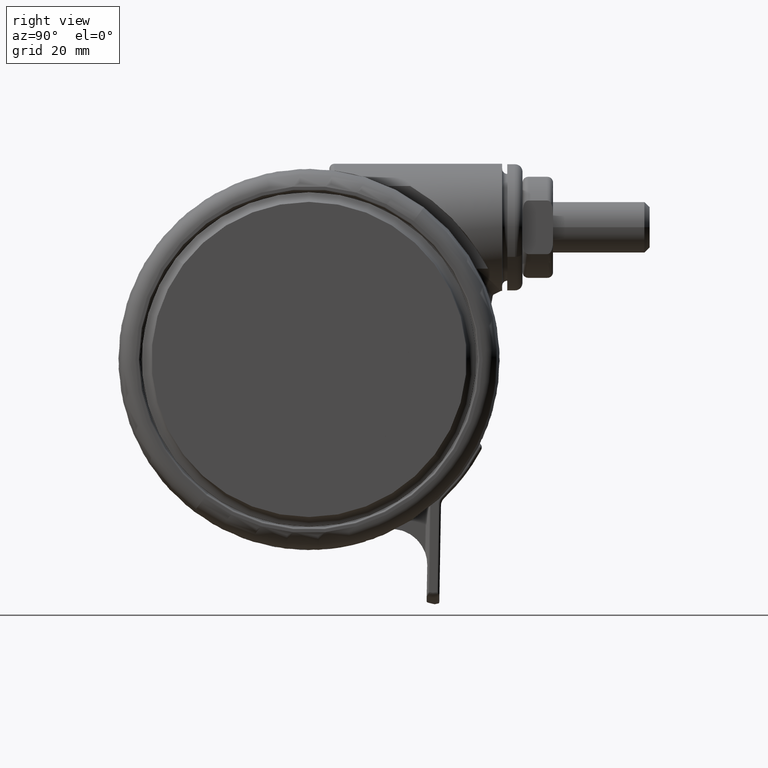
[diagram: clean part render]
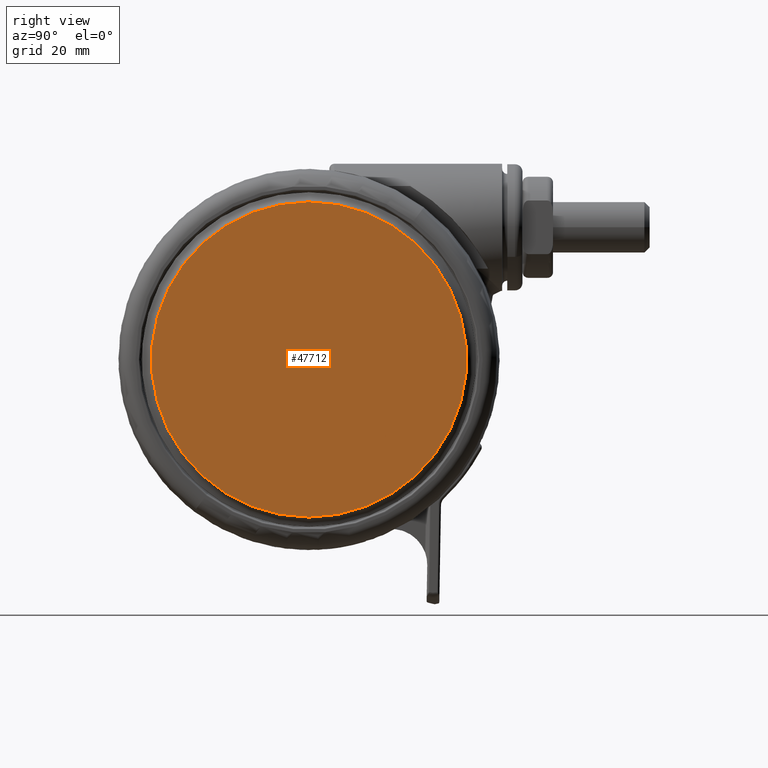
[diagram: same view with one face highlighted and labeled with its STEP entity id]
A machine part, right view. The second image highlights one B-rep face of the part: STEP entity #47712.
In plain terms, the highlighted planar face has unit normal (-1, 0, 0).
Its self-contained STEP definition (entity closure, byte-faithful):
#3876 = PLANE ( 'NONE',  #52758 ) ;
#4139 = ORIENTED_EDGE ( 'NONE', *, *, #32580, .T. ) ;
#7920 = CIRCLE ( 'NONE', #28366, 31.00000000000000700 ) ;
#9555 = AXIS2_PLACEMENT_3D ( 'NONE', #47211, #13113, #52933 ) ;
#9989 = CARTESIAN_POINT ( 'NONE',  ( 31.00000000000000700, 1.720845688168992600E-015, -1.301042606982605300E-015 ) ) ;
#13113 = DIRECTION ( 'NONE',  ( 0.0000000000000000000, 0.0000000000000000000, 1.000000000000000000 ) ) ;
#15369 = CARTESIAN_POINT ( 'NONE',  ( -1.720845688168992600E-015, 31.00000000000000700, -1.301042606982605300E-015 ) ) ;
#15989 = VERTEX_POINT ( 'NONE', #34104 ) ;
#24872 = CIRCLE ( 'NONE', #9555, 31.00000000000000700 ) ;
#27194 = DIRECTION ( 'NONE',  ( 0.0000000000000000000, 0.0000000000000000000, 1.000000000000000000 ) ) ;
#28366 = AXIS2_PLACEMENT_3D ( 'NONE', #61247, #27194, #67005 ) ;
#32580 = EDGE_CURVE ( 'NONE', #15989, #72697, #7920, .T. ) ;
#34104 = CARTESIAN_POINT ( 'NONE',  ( -31.00000000000000000, 2.136350658418872700E-015, -1.301042606982605300E-015 ) ) ;
#38248 = DIRECTION ( 'NONE',  ( -1.000000000000000000, -5.551115123125781500E-017, 0.0000000000000000000 ) ) ;
#42754 = ORIENTED_EDGE ( 'NONE', *, *, #43866, .T. ) ;
#43866 = EDGE_CURVE ( 'NONE', #72697, #15989, #24872, .T. ) ;
#47211 = CARTESIAN_POINT ( 'NONE',  ( 0.0000000000000000000, 0.0000000000000000000, -1.301042606982605300E-015 ) ) ;
#47712 = ADVANCED_FACE ( 'NONE', ( #50335 ), #3876, .F. ) ;
#50335 = FACE_OUTER_BOUND ( 'NONE', #59194, .T. ) ;
#52758 = AXIS2_PLACEMENT_3D ( 'NONE', #15369, #72349, #38248 ) ;
#52933 = DIRECTION ( 'NONE',  ( 1.000000000000000000, 5.551115123125781500E-017, 0.0000000000000000000 ) ) ;
#59194 = EDGE_LOOP ( 'NONE', ( #42754, #4139 ) ) ;
#61247 = CARTESIAN_POINT ( 'NONE',  ( 0.0000000000000000000, 0.0000000000000000000, -1.301042606982605300E-015 ) ) ;
#67005 = DIRECTION ( 'NONE',  ( 1.000000000000000000, 5.551115123125781500E-017, 0.0000000000000000000 ) ) ;
#72349 = DIRECTION ( 'NONE',  ( -0.0000000000000000000, 0.0000000000000000000, -1.000000000000000000 ) ) ;
#72697 = VERTEX_POINT ( 'NONE', #9989 ) ;